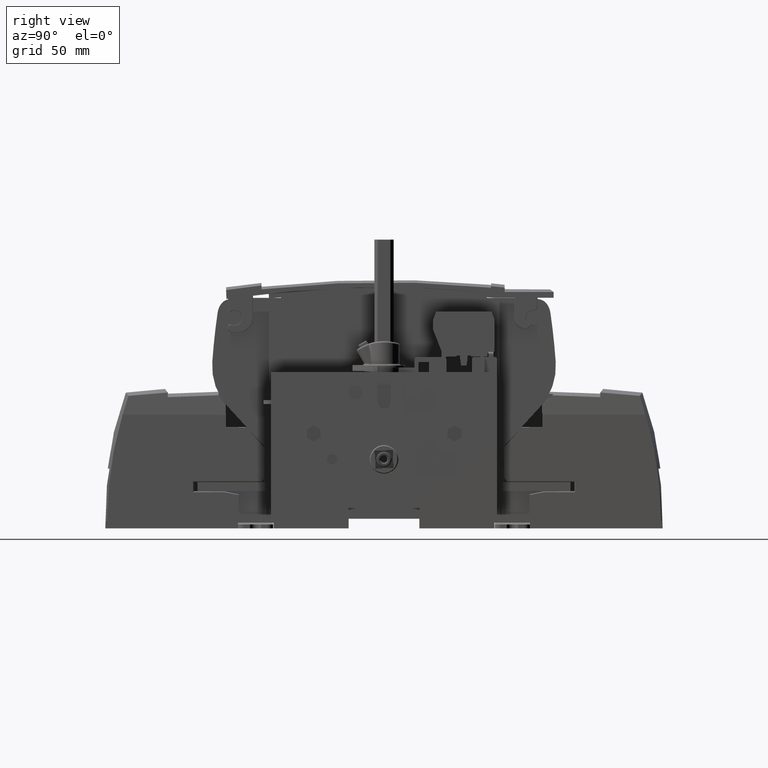
[diagram: clean part render]
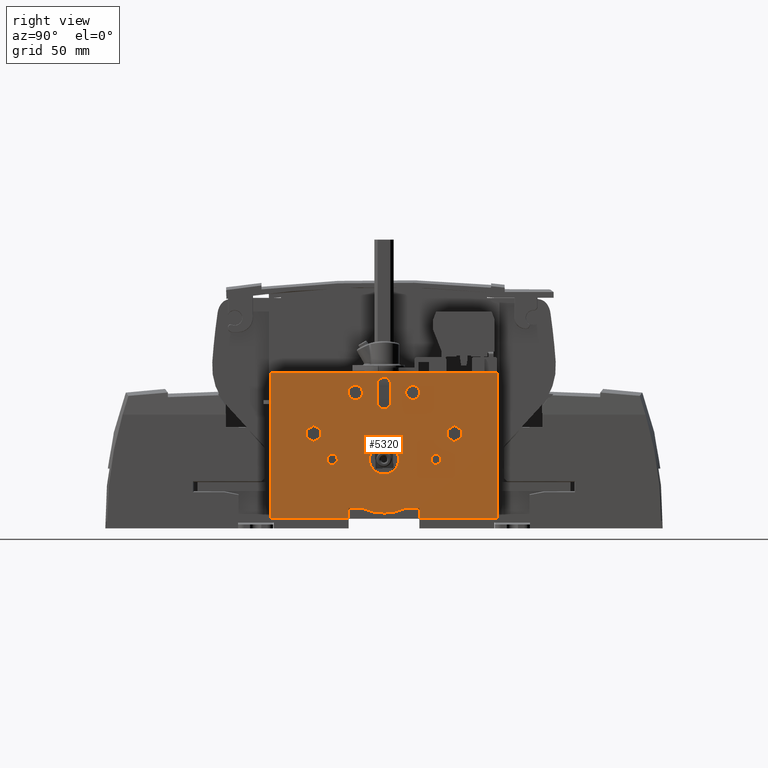
[diagram: same view with one face highlighted and labeled with its STEP entity id]
A machine part, right view. The second image highlights one B-rep face of the part: STEP entity #5320.
In plain terms, the highlighted planar face has unit normal (1, 0, 0).
Its self-contained STEP definition (entity closure, byte-faithful):
#445=PLANE('',#46784);
#5320=ADVANCED_FACE('',(#8752,#8753,#8754,#8755,#8756,#8757,#8758,#8759,
#8760),#445,.T.);
#7950=CIRCLE('',#46626,28.);
#7980=CIRCLE('',#46734,3.75);
#7983=CIRCLE('',#46739,3.65);
#7986=CIRCLE('',#46759,3.5);
#7987=CIRCLE('',#46761,7.65);
#7988=CIRCLE('',#46763,2.675);
#7991=CIRCLE('',#46767,2.575);
#7992=CIRCLE('',#46782,3.5);
#8752=FACE_BOUND('',#9413,.T.);
#8753=FACE_BOUND('',#9414,.T.);
#8754=FACE_BOUND('',#9415,.T.);
#8755=FACE_BOUND('',#9416,.T.);
#8756=FACE_BOUND('',#9417,.T.);
#8757=FACE_BOUND('',#9418,.T.);
#8758=FACE_BOUND('',#9419,.T.);
#8759=FACE_BOUND('',#9420,.T.);
#8760=FACE_BOUND('',#9421,.T.);
#9413=EDGE_LOOP('',(#13281,#13282,#13283,#13284,#13285,#13286,#13287,#13288,
#13289,#13290));
#9414=EDGE_LOOP('',(#13291,#13292,#13293,#13294));
#9415=EDGE_LOOP('',(#13295));
#9416=EDGE_LOOP('',(#13296));
#9417=EDGE_LOOP('',(#13297,#13298,#13299,#13300,#13301,#13302));
#9418=EDGE_LOOP('',(#13303));
#9419=EDGE_LOOP('',(#13304));
#9420=EDGE_LOOP('',(#13305));
#9421=EDGE_LOOP('',(#13306,#13307,#13308,#13309,#13310,#13311));
#13281=ORIENTED_EDGE('',*,*,#30158,.F.);
#13282=ORIENTED_EDGE('',*,*,#30162,.T.);
#13283=ORIENTED_EDGE('',*,*,#30387,.T.);
#13284=ORIENTED_EDGE('',*,*,#30031,.F.);
#13285=ORIENTED_EDGE('',*,*,#30037,.F.);
#13286=ORIENTED_EDGE('',*,*,#30163,.T.);
#13287=ORIENTED_EDGE('',*,*,#30148,.T.);
#13288=ORIENTED_EDGE('',*,*,#30185,.T.);
#13289=ORIENTED_EDGE('',*,*,#30151,.T.);
#13290=ORIENTED_EDGE('',*,*,#30156,.F.);
#13291=ORIENTED_EDGE('',*,*,#30375,.T.);
#13292=ORIENTED_EDGE('',*,*,#30419,.T.);
#13293=ORIENTED_EDGE('',*,*,#30372,.T.);
#13294=ORIENTED_EDGE('',*,*,#30377,.T.);
#13295=ORIENTED_EDGE('',*,*,#30340,.F.);
#13296=ORIENTED_EDGE('',*,*,#30343,.F.);
#13297=ORIENTED_EDGE('',*,*,#30369,.T.);
#13298=ORIENTED_EDGE('',*,*,#30370,.T.);
#13299=ORIENTED_EDGE('',*,*,#30360,.T.);
#13300=ORIENTED_EDGE('',*,*,#30363,.T.);
#13301=ORIENTED_EDGE('',*,*,#30365,.T.);
#13302=ORIENTED_EDGE('',*,*,#30367,.T.);
#13303=ORIENTED_EDGE('',*,*,#30378,.T.);
#13304=ORIENTED_EDGE('',*,*,#30379,.F.);
#13305=ORIENTED_EDGE('',*,*,#30382,.F.);
#13306=ORIENTED_EDGE('',*,*,#30357,.T.);
#13307=ORIENTED_EDGE('',*,*,#30358,.T.);
#13308=ORIENTED_EDGE('',*,*,#30348,.T.);
#13309=ORIENTED_EDGE('',*,*,#30351,.T.);
#13310=ORIENTED_EDGE('',*,*,#30353,.T.);
#13311=ORIENTED_EDGE('',*,*,#30355,.T.);
#25499=VERTEX_POINT('',#62361);
#25500=VERTEX_POINT('',#62363);
#25505=VERTEX_POINT('',#62375);
#25601=VERTEX_POINT('',#62601);
#25602=VERTEX_POINT('',#62603);
#25603=VERTEX_POINT('',#62607);
#25605=VERTEX_POINT('',#62610);
#25608=VERTEX_POINT('',#62618);
#25610=VERTEX_POINT('',#62623);
#25612=VERTEX_POINT('',#62630);
#25729=VERTEX_POINT('',#63001);
#25732=VERTEX_POINT('',#63009);
#25734=VERTEX_POINT('',#63018);
#25735=VERTEX_POINT('',#63020);
#25736=VERTEX_POINT('',#63024);
#25737=VERTEX_POINT('',#63028);
#25738=VERTEX_POINT('',#63032);
#25739=VERTEX_POINT('',#63036);
#25740=VERTEX_POINT('',#63042);
#25741=VERTEX_POINT('',#63044);
#25742=VERTEX_POINT('',#63048);
#25743=VERTEX_POINT('',#63052);
#25744=VERTEX_POINT('',#63056);
#25745=VERTEX_POINT('',#63060);
#25746=VERTEX_POINT('',#63066);
#25747=VERTEX_POINT('',#63068);
#25748=VERTEX_POINT('',#63072);
#25749=VERTEX_POINT('',#63074);
#25750=VERTEX_POINT('',#63080);
#25751=VERTEX_POINT('',#63083);
#25754=VERTEX_POINT('',#63090);
#30031=EDGE_CURVE('',#25499,#25500,#36562,.T.);
#30037=EDGE_CURVE('',#25505,#25499,#36568,.T.);
#30148=EDGE_CURVE('',#25602,#25601,#36675,.T.);
#30151=EDGE_CURVE('',#25605,#25603,#7950,.T.);
#30156=EDGE_CURVE('',#25608,#25603,#36681,.T.);
#30158=EDGE_CURVE('',#25610,#25608,#36683,.T.);
#30162=EDGE_CURVE('',#25610,#25612,#36687,.T.);
#30163=EDGE_CURVE('',#25505,#25602,#36688,.T.);
#30185=EDGE_CURVE('',#25601,#25605,#36708,.T.);
#30340=EDGE_CURVE('',#25729,#25729,#7980,.T.);
#30343=EDGE_CURVE('',#25732,#25732,#7983,.T.);
#30348=EDGE_CURVE('',#25735,#25734,#36839,.T.);
#30351=EDGE_CURVE('',#25734,#25736,#36842,.T.);
#30353=EDGE_CURVE('',#25736,#25737,#36844,.T.);
#30355=EDGE_CURVE('',#25737,#25738,#36846,.T.);
#30357=EDGE_CURVE('',#25738,#25739,#36848,.T.);
#30358=EDGE_CURVE('',#25739,#25735,#36849,.T.);
#30360=EDGE_CURVE('',#25741,#25740,#36851,.T.);
#30363=EDGE_CURVE('',#25740,#25742,#36854,.T.);
#30365=EDGE_CURVE('',#25742,#25743,#36856,.T.);
#30367=EDGE_CURVE('',#25743,#25744,#36858,.T.);
#30369=EDGE_CURVE('',#25744,#25745,#36860,.T.);
#30370=EDGE_CURVE('',#25745,#25741,#36861,.T.);
#30372=EDGE_CURVE('',#25747,#25746,#36863,.T.);
#30375=EDGE_CURVE('',#25749,#25748,#36866,.T.);
#30377=EDGE_CURVE('',#25746,#25749,#7986,.T.);
#30378=EDGE_CURVE('',#25750,#25750,#7987,.T.);
#30379=EDGE_CURVE('',#25751,#25751,#7988,.T.);
#30382=EDGE_CURVE('',#25754,#25754,#7991,.T.);
#30387=EDGE_CURVE('',#25612,#25500,#36872,.T.);
#30419=EDGE_CURVE('',#25748,#25747,#7992,.T.);
#36562=LINE('',#62362,#41631);
#36568=LINE('',#62374,#41637);
#36675=LINE('',#62602,#41744);
#36681=LINE('',#62619,#41750);
#36683=LINE('',#62624,#41752);
#36687=LINE('',#62631,#41756);
#36688=LINE('',#62633,#41757);
#36708=LINE('',#62678,#41777);
#36839=LINE('',#63019,#41908);
#36842=LINE('',#63025,#41911);
#36844=LINE('',#63029,#41913);
#36846=LINE('',#63033,#41915);
#36848=LINE('',#63037,#41917);
#36849=LINE('',#63039,#41918);
#36851=LINE('',#63043,#41920);
#36854=LINE('',#63049,#41923);
#36856=LINE('',#63053,#41925);
#36858=LINE('',#63057,#41927);
#36860=LINE('',#63061,#41929);
#36861=LINE('',#63063,#41930);
#36863=LINE('',#63067,#41932);
#36866=LINE('',#63073,#41935);
#36872=LINE('',#63101,#41941);
#41631=VECTOR('',#50251,1.);
#41637=VECTOR('',#50259,1.);
#41744=VECTOR('',#50414,1.);
#41750=VECTOR('',#50428,1.);
#41752=VECTOR('',#50432,1.);
#41756=VECTOR('',#50438,1.);
#41757=VECTOR('',#50441,1.);
#41777=VECTOR('',#50475,1.);
#41908=VECTOR('',#50818,1.);
#41911=VECTOR('',#50823,1.);
#41913=VECTOR('',#50827,1.);
#41915=VECTOR('',#50831,1.);
#41917=VECTOR('',#50835,1.);
#41918=VECTOR('',#50838,1.);
#41920=VECTOR('',#50842,1.);
#41923=VECTOR('',#50847,1.);
#41925=VECTOR('',#50851,1.);
#41927=VECTOR('',#50855,1.);
#41929=VECTOR('',#50859,1.);
#41930=VECTOR('',#50862,1.);
#41932=VECTOR('',#50866,1.);
#41935=VECTOR('',#50871,1.);
#41941=VECTOR('',#50905,1.);
#46626=AXIS2_PLACEMENT_3D('',#62609,#50419,#50420);
#46734=AXIS2_PLACEMENT_3D('',#63000,#50794,#50795);
#46739=AXIS2_PLACEMENT_3D('',#63008,#50804,#50805);
#46759=AXIS2_PLACEMENT_3D('',#63077,#50875,#50876);
#46761=AXIS2_PLACEMENT_3D('',#63079,#50879,#50880);
#46763=AXIS2_PLACEMENT_3D('',#63082,#50883,#50884);
#46767=AXIS2_PLACEMENT_3D('',#63089,#50891,#50892);
#46782=AXIS2_PLACEMENT_3D('',#63158,#50957,#50958);
#46784=AXIS2_PLACEMENT_3D('',#63160,#50961,#50962);
#50251=DIRECTION('',(-4.16333634234433E-017,1.,-2.31111593326468E-033));
#50259=DIRECTION('',(-2.7755575615629E-017,1.1720108398233E-015,1.));
#50414=DIRECTION('',(-2.7755575615629E-017,1.17187616924241E-015,1.));
#50419=DIRECTION('',(1.,4.16333634234433E-017,2.77555756156289E-017));
#50420=DIRECTION('',(0.,1.,0.));
#50428=DIRECTION('',(4.16333634234433E-017,-1.,2.76274650522349E-029));
#50432=DIRECTION('',(-2.7755575615629E-017,1.79192583413347E-015,1.));
#50438=DIRECTION('',(-4.16333634234433E-017,1.,-2.31111593326468E-033));
#50441=DIRECTION('',(-4.16333634234433E-017,1.,-2.31111593326468E-033));
#50475=DIRECTION('',(-4.16333634234433E-017,1.,-2.76274650522349E-029));
#50794=DIRECTION('',(1.,4.16333634234433E-017,2.77555756156289E-017));
#50795=DIRECTION('',(0.,0.,-1.));
#50804=DIRECTION('',(1.,4.16333634234433E-017,2.77555756156289E-017));
#50805=DIRECTION('',(0.,0.,-1.));
#50818=DIRECTION('',(7.63278329429795E-017,-0.866025403784439,-0.5));
#50823=DIRECTION('',(1.38777878078145E-017,-0.866025403784439,0.5));
#50827=DIRECTION('',(-5.55111512312578E-017,3.33847688608258E-015,1.));
#50831=DIRECTION('',(-6.2450045135165E-017,0.866025403784439,0.5));
#50835=DIRECTION('',(-1.38777878078145E-017,0.866025403784439,-0.5));
#50838=DIRECTION('',(5.55111512312578E-017,-1.66923844304129E-015,-1.));
#50842=DIRECTION('',(7.63278329429795E-017,-0.866025403784439,-0.5));
#50847=DIRECTION('',(1.38777878078145E-017,-0.866025403784439,0.5));
#50851=DIRECTION('',(-5.55111512312578E-017,3.33847688608258E-015,1.));
#50855=DIRECTION('',(-6.2450045135165E-017,0.866025403784439,0.5));
#50859=DIRECTION('',(-1.38777878078145E-017,0.866025403784439,-0.5));
#50862=DIRECTION('',(5.55111512312578E-017,-1.66923844304129E-015,-1.));
#50866=DIRECTION('',(-2.7755575615629E-017,1.1720108398233E-015,1.));
#50871=DIRECTION('',(2.7755575615629E-017,-1.1720108398233E-015,-1.));
#50875=DIRECTION('',(-1.,-4.16333634234433E-017,-2.77555756156289E-017));
#50876=DIRECTION('',(0.,1.,0.));
#50879=DIRECTION('',(-1.,-4.16333634234433E-017,-2.77555756156289E-017));
#50880=DIRECTION('',(0.,0.,-1.));
#50883=DIRECTION('',(1.,4.16333634234433E-017,2.77555756156289E-017));
#50884=DIRECTION('',(0.,0.,1.));
#50891=DIRECTION('',(1.,4.16333634234433E-017,2.77555756156289E-017));
#50892=DIRECTION('',(0.,0.,1.));
#50905=DIRECTION('',(-2.7755575615629E-017,1.83007919596168E-015,1.));
#50957=DIRECTION('',(-1.,-4.16333634234433E-017,-2.77555756156289E-017));
#50958=DIRECTION('',(0.,1.,0.));
#50961=DIRECTION('',(1.,4.16333634234433E-017,2.77555756156289E-017));
#50962=DIRECTION('',(-4.16333634234434E-017,1.,0.));
#62361=CARTESIAN_POINT('',(111.200000000001,-59.0000000000008,45.5999999999994));
#62362=CARTESIAN_POINT('',(111.200000000001,4.50000000000021,45.5999999999994));
#62363=CARTESIAN_POINT('',(111.200000000001,59.,45.5999999999994));
#62374=CARTESIAN_POINT('',(111.200000000001,-59.0000000000008,-30.9999999999997));
#62375=CARTESIAN_POINT('',(111.200000000001,-59.0000000000008,-30.9999999999998));
#62601=CARTESIAN_POINT('',(111.200000000001,-18.5,-25.3999999999999));
#62602=CARTESIAN_POINT('',(111.200000000001,-18.5,-28.1999999999998));
#62603=CARTESIAN_POINT('',(111.200000000001,-18.5,-30.9999999999998));
#62607=CARTESIAN_POINT('',(111.200000000001,11.7830386573246,-25.3999999999999));
#62609=CARTESIAN_POINT('',(111.200000000001,2.0122792321331E-013,8.32667268468867E-014));
#62610=CARTESIAN_POINT('',(111.200000000001,-11.783038657324,-25.3999999999999));
#62618=CARTESIAN_POINT('',(111.200000000001,18.4999999999998,-25.3999999999999));
#62619=CARTESIAN_POINT('',(111.200000000001,4.50000000000021,-25.3999999999999));
#62623=CARTESIAN_POINT('',(111.200000000001,18.4999999999998,-30.9999999999998));
#62624=CARTESIAN_POINT('',(111.200000000001,18.4999999999998,-30.9999999999998));
#62630=CARTESIAN_POINT('',(111.200000000001,58.9999999999998,-30.9999999999998));
#62631=CARTESIAN_POINT('',(111.200000000001,2.0122792321331E-013,-30.9999999999998));
#62633=CARTESIAN_POINT('',(111.200000000001,2.0122792321331E-013,-30.9999999999998));
#62678=CARTESIAN_POINT('',(111.200000000001,2.0122792321331E-013,-25.3999999999999));
#63000=CARTESIAN_POINT('',(111.200000000001,-14.9999999999998,35.0000000000084));
#63001=CARTESIAN_POINT('',(111.200000000001,-14.9999999999998,31.2500000000084));
#63008=CARTESIAN_POINT('',(111.200000000001,15.,35.0000000000082));
#63009=CARTESIAN_POINT('',(111.200000000001,15.,31.3500000000082));
#63018=CARTESIAN_POINT('',(111.200000000001,36.75,9.34307806183485));
#63019=CARTESIAN_POINT('',(111.200000000001,-4.9065652342038,-14.707351089648));
#63020=CARTESIAN_POINT('',(111.200000000001,40.35,11.4215390309174));
#63024=CARTESIAN_POINT('',(111.200000000001,33.1500000000001,11.4215390309174));
#63025=CARTESIAN_POINT('',(111.200000000001,30.0315652342038,13.2219681824003));
#63028=CARTESIAN_POINT('',(111.200000000001,33.1500000000001,15.5784609690828));
#63029=CARTESIAN_POINT('',(111.200000000001,33.1500000000001,-30.9999999999999));
#63032=CARTESIAN_POINT('',(111.200000000001,36.75,17.6569219381654));
#63033=CARTESIAN_POINT('',(111.200000000001,-8.5065652342038,-8.47196818239967));
#63036=CARTESIAN_POINT('',(111.200000000001,40.35,15.5784609690828));
#63037=CARTESIAN_POINT('',(111.200000000001,33.6315652342039,19.4573510896481));
#63039=CARTESIAN_POINT('',(111.200000000001,40.35,-30.9999999999999));
#63042=CARTESIAN_POINT('',(111.200000000001,-36.7499999999998,9.34307806183493));
#63043=CARTESIAN_POINT('',(111.200000000001,-23.2815652342038,17.1190824994303));
#63044=CARTESIAN_POINT('',(111.200000000001,-33.1499999999998,11.4215390309176));
#63048=CARTESIAN_POINT('',(111.200000000001,-40.3499999999998,11.4215390309176));
#63049=CARTESIAN_POINT('',(111.200000000001,11.6565652342042,-18.6044654066781));
#63052=CARTESIAN_POINT('',(111.200000000001,-40.3499999999998,15.5784609690829));
#63053=CARTESIAN_POINT('',(111.200000000001,-40.3499999999998,-30.9999999999998));
#63056=CARTESIAN_POINT('',(111.200000000001,-36.7499999999998,17.6569219381655));
#63057=CARTESIAN_POINT('',(111.200000000001,-26.8815652342038,23.3544654066783));
#63060=CARTESIAN_POINT('',(111.200000000001,-33.1499999999998,15.5784609690829));
#63061=CARTESIAN_POINT('',(111.200000000001,15.2565652342038,-12.3690824994301));
#63063=CARTESIAN_POINT('',(111.200000000001,-33.1499999999998,-30.9999999999998));
#63066=CARTESIAN_POINT('',(111.200000000001,-3.49999999999979,39.3999999999997));
#63067=CARTESIAN_POINT('',(111.200000000001,-3.49999999999979,39.3999999999997));
#63068=CARTESIAN_POINT('',(111.200000000001,-3.49999999999979,29.8999999999995));
#63072=CARTESIAN_POINT('',(111.200000000001,3.5000000000002,29.8999999999995));
#63073=CARTESIAN_POINT('',(111.200000000001,3.5000000000002,39.3999999999996));
#63074=CARTESIAN_POINT('',(111.200000000001,3.5000000000002,39.3999999999996));
#63077=CARTESIAN_POINT('',(111.200000000001,2.0122792321331E-013,39.3999999999996));
#63079=CARTESIAN_POINT('',(111.200000000001,2.0122792321331E-013,8.32667268468867E-014));
#63080=CARTESIAN_POINT('',(111.200000000001,2.0122792321331E-013,-7.64999999999992));
#63082=CARTESIAN_POINT('',(111.200000000001,-27.0999999999998,8.32667268468867E-014));
#63083=CARTESIAN_POINT('',(111.200000000001,-27.0999999999998,2.67500000000008));
#63089=CARTESIAN_POINT('',(111.200000000001,27.1000000000001,2.77555756156289E-014));
#63090=CARTESIAN_POINT('',(111.200000000001,27.1000000000001,2.57500000000003));
#63101=CARTESIAN_POINT('',(111.200000000001,58.9999999999999,42.5999999999987));
#63158=CARTESIAN_POINT('',(111.200000000001,2.0122792321331E-013,29.8999999999995));
#63160=CARTESIAN_POINT('',(111.200000000001,4.50000000000021,-30.9999999999998));